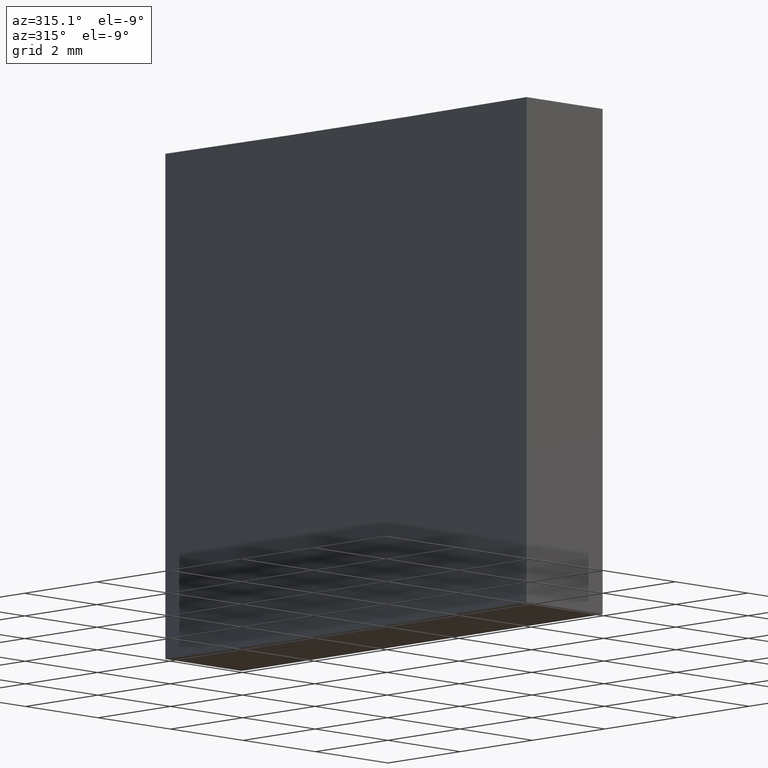
[diagram: clean part render]
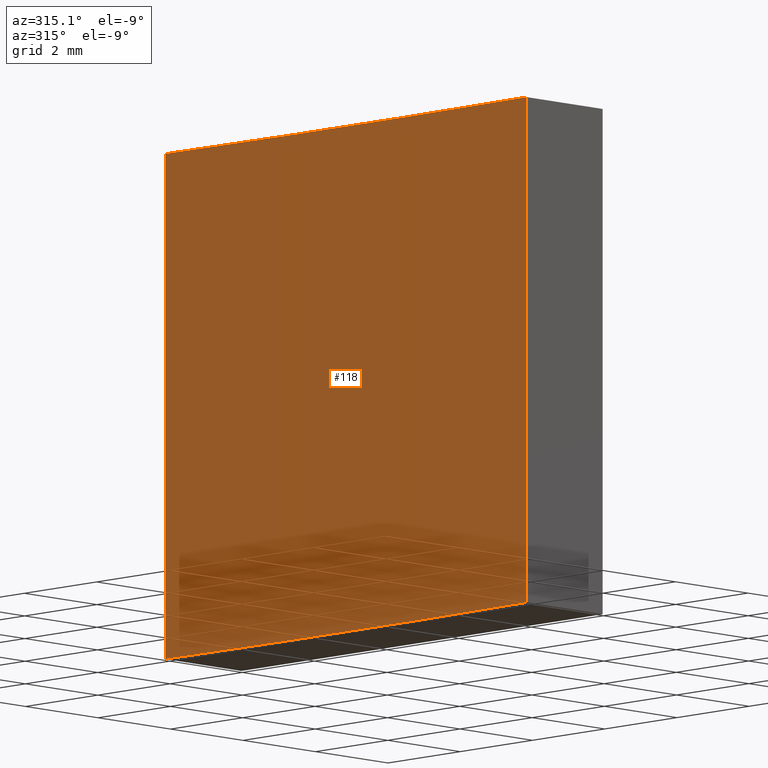
[diagram: same view with one face highlighted and labeled with its STEP entity id]
A machine part, auxiliary view. The second image highlights one B-rep face of the part: STEP entity #118.
In plain terms, the highlighted cylindrical surface (partial cylindrical patch) has radius 129.25 mm, axis along (-0, -0, -1).
Its self-contained STEP definition (entity closure, byte-faithful):
#1 = DIRECTION ( 'NONE',  ( -0.000000000000000000, -0.000000000000000000, -1.000000000000000000 ) ) ;
#4 = EDGE_CURVE ( 'NONE', #154, #27, #97, .T. ) ;
#15 = DIRECTION ( 'NONE',  ( 1.000000000000000000, 0.000000000000000000, 0.000000000000000000 ) ) ;
#25 = EDGE_CURVE ( 'NONE', #154, #105, #194, .T. ) ;
#27 = VERTEX_POINT ( 'NONE', #159 ) ;
#29 = AXIS2_PLACEMENT_3D ( 'NONE', #54, #164, #90 ) ;
#32 = CARTESIAN_POINT ( 'NONE',  ( 96.71095150400097396, -65.16139251231673768, 0.000000000000000000 ) ) ;
#33 = VECTOR ( 'NONE', #1, 1000.000000000000000 ) ;
#38 = AXIS2_PLACEMENT_3D ( 'NONE', #68, #66, #15 ) ;
#50 = CYLINDRICAL_SURFACE ( 'NONE', #29, 129.2500000000000284 ) ;
#54 = CARTESIAN_POINT ( 'NONE',  ( -32.44230048757687257, -60.16139251231674479, 10.00000000000000000 ) ) ;
#66 = DIRECTION ( 'NONE',  ( -0.000000000000000000, -0.000000000000000000, -1.000000000000000000 ) ) ;
#68 = CARTESIAN_POINT ( 'NONE',  ( -32.44230048757687257, -60.16139251231674479, 0.000000000000000000 ) ) ;
#70 = VERTEX_POINT ( 'NONE', #32 ) ;
#75 = VECTOR ( 'NONE', #123, 1000.000000000000000 ) ;
#78 = ORIENTED_EDGE ( 'NONE', *, *, #25, .T. ) ;
#86 = EDGE_CURVE ( 'NONE', #105, #70, #207, .T. ) ;
#87 = DIRECTION ( 'NONE',  ( -0.000000000000000000, -0.000000000000000000, -1.000000000000000000 ) ) ;
#90 = DIRECTION ( 'NONE',  ( -1.000000000000000000, 0.000000000000000000, 0.000000000000000000 ) ) ;
#97 = CIRCLE ( 'NONE', #210, 129.2500000000000284 ) ;
#99 = EDGE_LOOP ( 'NONE', ( #151, #183, #190, #78 ) ) ;
#105 = VERTEX_POINT ( 'NONE', #237 ) ;
#118 = ADVANCED_FACE ( 'NONE', ( #215 ), #50, .F. ) ;
#123 = DIRECTION ( 'NONE',  ( -0.000000000000000000, -0.000000000000000000, -1.000000000000000000 ) ) ;
#142 = DIRECTION ( 'NONE',  ( 1.000000000000000000, 0.000000000000000000, 0.000000000000000000 ) ) ;
#144 = CARTESIAN_POINT ( 'NONE',  ( 96.71095150400097396, -55.16139251231674479, 10.00000000000000000 ) ) ;
#151 = ORIENTED_EDGE ( 'NONE', *, *, #86, .T. ) ;
#154 = VERTEX_POINT ( 'NONE', #144 ) ;
#159 = CARTESIAN_POINT ( 'NONE',  ( 96.71095150400097396, -65.16139251231673768, 10.00000000000000000 ) ) ;
#163 = CARTESIAN_POINT ( 'NONE',  ( -32.44230048757687257, -60.16139251231674479, 10.00000000000000000 ) ) ;
#164 = DIRECTION ( 'NONE',  ( -0.000000000000000000, -0.000000000000000000, -1.000000000000000000 ) ) ;
#174 = CARTESIAN_POINT ( 'NONE',  ( 96.71095150400097396, -55.16139251231674479, 10.00000000000000000 ) ) ;
#175 = EDGE_CURVE ( 'NONE', #27, #70, #177, .T. ) ;
#177 = LINE ( 'NONE', #213, #33 ) ;
#183 = ORIENTED_EDGE ( 'NONE', *, *, #175, .F. ) ;
#190 = ORIENTED_EDGE ( 'NONE', *, *, #4, .F. ) ;
#194 = LINE ( 'NONE', #174, #75 ) ;
#207 = CIRCLE ( 'NONE', #38, 129.2500000000000284 ) ;
#210 = AXIS2_PLACEMENT_3D ( 'NONE', #163, #87, #142 ) ;
#213 = CARTESIAN_POINT ( 'NONE',  ( 96.71095150400097396, -65.16139251231673768, 10.00000000000000000 ) ) ;
#215 = FACE_OUTER_BOUND ( 'NONE', #99, .T. ) ;
#237 = CARTESIAN_POINT ( 'NONE',  ( 96.71095150400097396, -55.16139251231674479, 0.000000000000000000 ) ) ;